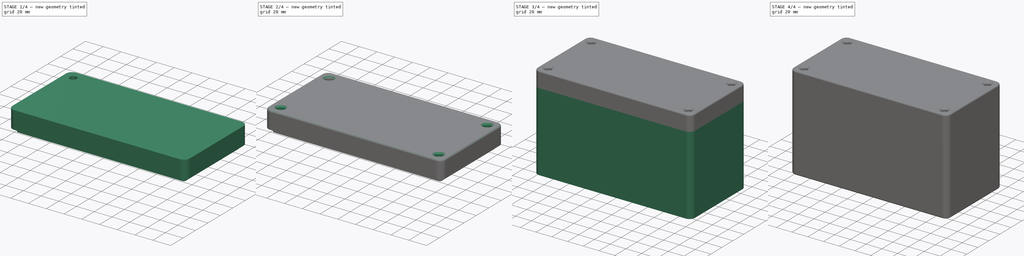
[diagram: build sequence overview — one tinted view per stage of 4, left to right]
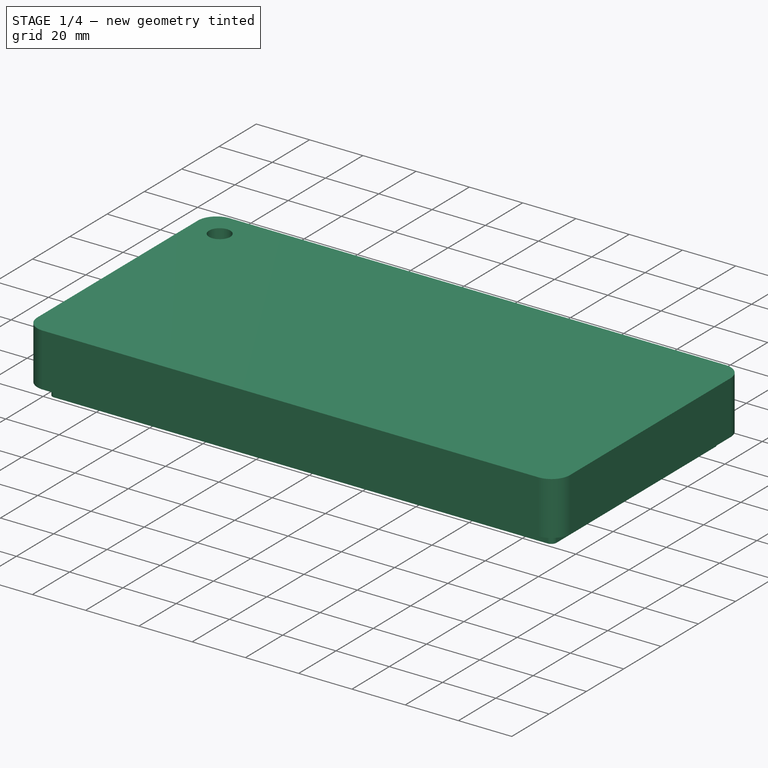
[diagram: stage 1 of 4 — iso view after this stage's code; geometry added in this stage tinted green]
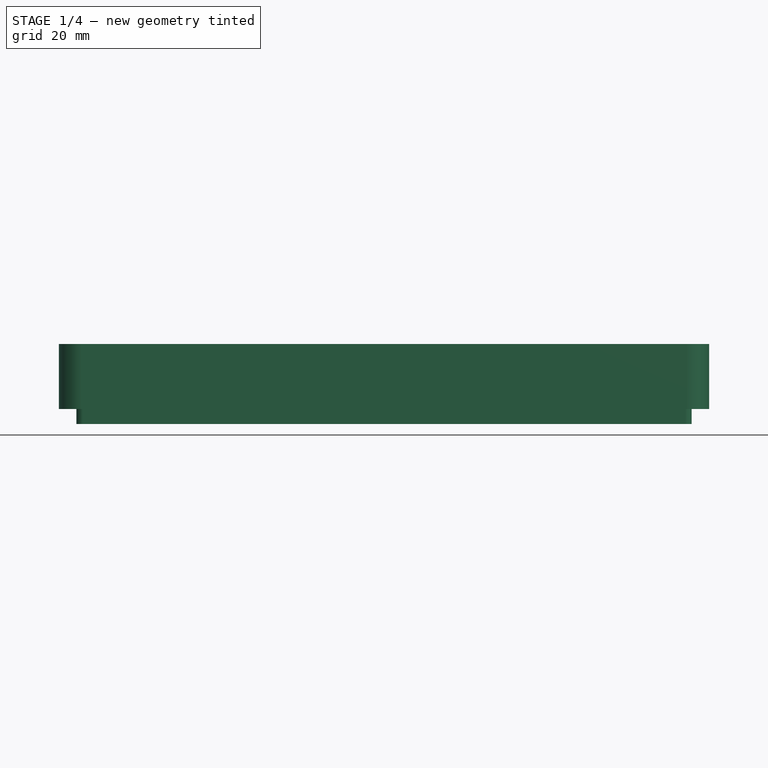
[diagram: stage 1 of 4 — front view after this stage's code; geometry added in this stage tinted green]
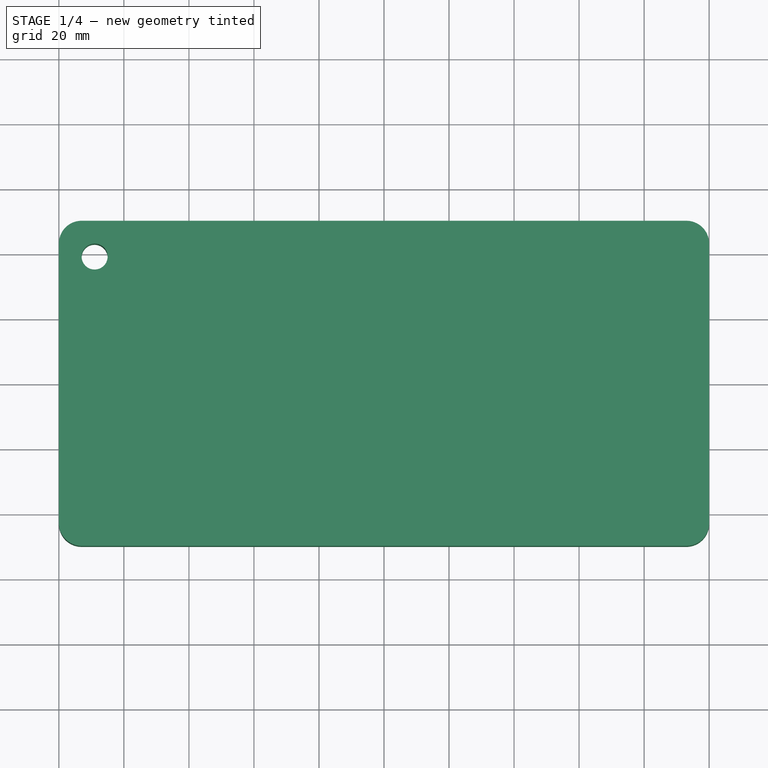
[diagram: stage 1 of 4 — top view after this stage's code; geometry added in this stage tinted green]
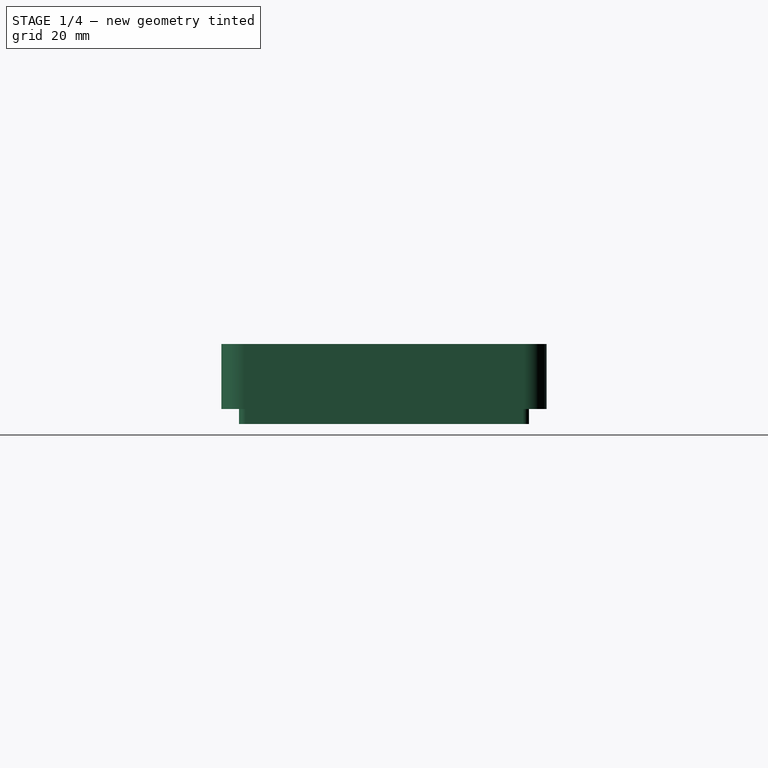
[diagram: stage 1 of 4 — right view after this stage's code; geometry added in this stage tinted green]
FCSTD DOCUMENT  (FreeCAD 0.20R29410 (Git))
Label: HOBOEnclosure
License: All rights reserved
LicenseURL: http://en.wikipedia.org/wiki/All_rights_reserved
objects: Sketcher::SketchObject×7, PartDesign::Pad×4, PartDesign::Mirrored×4, PartDesign::Pocket×3, PartDesign::Fillet×3, PartDesign::MultiTransform×2, PartDesign::Body×2, Spreadsheet::Sheet×1, PartDesign::Chamfer×1, App::TextDocument×1
note: 37 computed .brp shape members not serialized (recipe doc carries the construction recipe); baked Part::Feature solids carry a one-line shape summary decoded from their .brp

FEATURE [Sketcher::SketchObject] Sketch003
  AttachmentOffset = pos=(0,0,95) rot=(0,0,1;0rad)
  FullyConstrained = true
  MapMode = 5
  Placement = pos=(0,0,95) rot=(0,0,1;0rad)
  Support = -> [XY_Plane001]
  expr: .AttachmentOffset.Base.z = Spreadsheet.box_height - Spreadsheet.box_wall_thickness
  expr: Constraints[17] = Spreadsheet.outside_radius
  expr: Constraints[18] = Spreadsheet.box_width
  expr: Constraints[19] = Spreadsheet.box_length
  sketch-geometry (9):
    g0: LineSegment StartX=100 StartY=-43 StartZ=0 EndX=100 EndY=43 EndZ=0
    g1: LineSegment StartX=93 StartY=50 StartZ=0 EndX=-93 EndY=50 EndZ=0
    g2: LineSegment StartX=-100 StartY=43 StartZ=0 EndX=-100 EndY=-43 EndZ=0
    g3: LineSegment StartX=-93 StartY=-50 StartZ=0 EndX=93 EndY=-50 EndZ=0
    g4: GeomPoint X=0 Y=0 Z=0
    g5: ArcOfCircle CenterX=-93 CenterY=43 CenterZ=0 NormalX=0 NormalY=0 NormalZ=1 AngleXU=0 Radius=7 StartAngle=1.5708 EndAngle=3.14159
    g6: ArcOfCircle CenterX=-93 CenterY=-43 CenterZ=0 NormalX=0 NormalY=0 NormalZ=1 AngleXU=0 Radius=7 StartAngle=3.14159 EndAngle=4.71239
    g7: ArcOfCircle CenterX=93 CenterY=-43 CenterZ=0 NormalX=0 NormalY=0 NormalZ=1 AngleXU=0 Radius=7 StartAngle=4.71239 EndAngle=6.28319
    g8: ArcOfCircle CenterX=93 CenterY=43 CenterZ=0 NormalX=0 NormalY=0 NormalZ=1 AngleXU=0 Radius=7 StartAngle=1e-16 EndAngle=1.5708
  constraints (20):
    c: Horizontal(g1)
    c: Horizontal(g3)
    c: Vertical(g0)
    c: Vertical(g2)
    c: Coincident(g4,g-1)
    c: Tangent(g1,g5) = -1.5708
    c: Tangent(g2,g5) = -1.5708
    c: Tangent(g3,g6) = -1.5708
    c: Tangent(g2,g6) = -1.5708
    c: Tangent(g0,g7) = -1.5708
    c: Tangent(g3,g7) = -1.5708
    c: Tangent(g1,g8) = -1.5708
    c: Tangent(g0,g8) = -1.5708
    c: Symmetric(g5,g7,g4)
    c: Equal(g5,g8)
    c: Equal(g8,g7)
    c: Equal(g7,g6)
    c: Radius(g5) = 7
    c: DistanceY(g3,g1) = 100
    c: DistanceX(g2,g0) = 200
FEATURE [PartDesign::Pad] Pad002
  Direction = (0,0,1)
  Length = 20
  Length2 = 10
  Profile = -> Sketch003
  ReferenceAxis = -> Sketch003 [N_Axis]
  Type = 0
  expr: Length = Spreadsheet.lid_height
FEATURE [Sketcher::SketchObject] Sketch004
  AttachmentOffset = pos=(0,0,95) rot=(0,0,1;0rad)
  FullyConstrained = true
  MapMode = 5
  Placement = pos=(0,0,95) rot=(0,0,1;0rad)
  Support = -> [XY_Plane001]
  expr: .AttachmentOffset.Base.z = Spreadsheet.box_height - Spreadsheet.box_wall_thickness
  expr: Constraints[17] = Spreadsheet.inside_radius
  expr: Constraints[18] = Spreadsheet.box_inside_width - Spreadsheet.clearance_sides * 2
  expr: Constraints[19] = Spreadsheet.box_inside_length - Spreadsheet.clearance_sides * 2
  sketch-geometry (9):
    g0: LineSegment StartX=94.6 StartY=-42.6 StartZ=0 EndX=94.6 EndY=42.6 EndZ=0
    g1: LineSegment StartX=92.6 StartY=44.6 StartZ=0 EndX=-92.6 EndY=44.6 EndZ=0
    g2: LineSegment StartX=-94.6 StartY=42.6 StartZ=0 EndX=-94.6 EndY=-42.6 EndZ=0
    g3: LineSegment StartX=-92.6 StartY=-44.6 StartZ=0 EndX=92.6 EndY=-44.6 EndZ=0
    g4: GeomPoint X=0 Y=0 Z=0
    g5: ArcOfCircle CenterX=-92.6 CenterY=42.6 CenterZ=0 NormalX=0 NormalY=0 NormalZ=1 AngleXU=0 Radius=2 StartAngle=1.5708 EndAngle=3.14159
    g6: ArcOfCircle CenterX=-92.6 CenterY=-42.6 CenterZ=0 NormalX=0 NormalY=0 NormalZ=1 AngleXU=0 Radius=2 StartAngle=3.14159 EndAngle=4.71239
    g7: ArcOfCircle CenterX=92.6 CenterY=-42.6 CenterZ=0 NormalX=0 NormalY=0 NormalZ=1 AngleXU=0 Radius=2 StartAngle=4.71239 EndAngle=6.28319
    g8: ArcOfCircle CenterX=92.6 CenterY=42.6 CenterZ=0 NormalX=0 NormalY=0 NormalZ=1 AngleXU=0 Radius=2 StartAngle=9.29236e-11 EndAngle=1.5708
  constraints (20):
    c: Horizontal(g1)
    c: Horizontal(g3)
    c: Vertical(g0)
    c: Vertical(g2)
    c: Coincident(g4,g-1)
    c: Tangent(g1,g5) = -1.5708
    c: Tangent(g2,g5) = -1.5708
    c: Tangent(g2,g6) = -1.5708
    c: Tangent(g3,g6) = -1.5708
    c: Tangent(g3,g7) = -1.5708
    c: Tangent(g0,g7) = -1.5708
    c: Tangent(g0,g8) = -1.5708
    c: Tangent(g1,g8) = -1.5708
    c: Symmetric(g7,g5,g4)
    c: Equal(g6,g5)
    c: Equal(g5,g8)
    c: Equal(g8,g7)
    c: Radius(g5) = 2
    c: DistanceY(g3,g1) = 89.2
    c: DistanceX(g2,g0) = 189.2
FEATURE [PartDesign::Pad] Pad003
  BaseFeature = -> Pad002
  Direction = (0,0,1)
  Length = 4.6
  Length2 = 10
  Profile = -> Sketch004
  ReferenceAxis = -> Sketch004 [N_Axis]
  Reversed = true
  Type = 0
  expr: Length = Spreadsheet.box_wall_thickness - Spreadsheet.clearance_sides
FEATURE [Sketcher::SketchObject] Sketch005
  FullyConstrained = true
  MapMode = 5
  Support = -> [XY_Plane001]
  expr: Constraints[0] = Spreadsheet.clearance_hole
  expr: Constraints[1] = Spreadsheet.hole_center_length
  expr: Constraints[2] = Spreadsheet.hole_center_width
  sketch-geometry (1):
    g0: Circle CenterX=-89 CenterY=39 CenterZ=0 NormalX=0 NormalY=0 NormalZ=1 AngleXU=0 Radius=4
  constraints (3):
    c: Diameter(g0) = 8
    c: DistanceX(g0,g-1) = 89
    c: DistanceY(g-1,g0) = 39
FEATURE [PartDesign::Pocket] Pocket001
  BaseFeature = -> Pad003
  Direction = (0,0,-1)
  Length = 5
  Length2 = 5
  Profile = -> Sketch005
  ReferenceAxis = -> Sketch005 [N_Axis]
  Reversed = true
  Type = 1
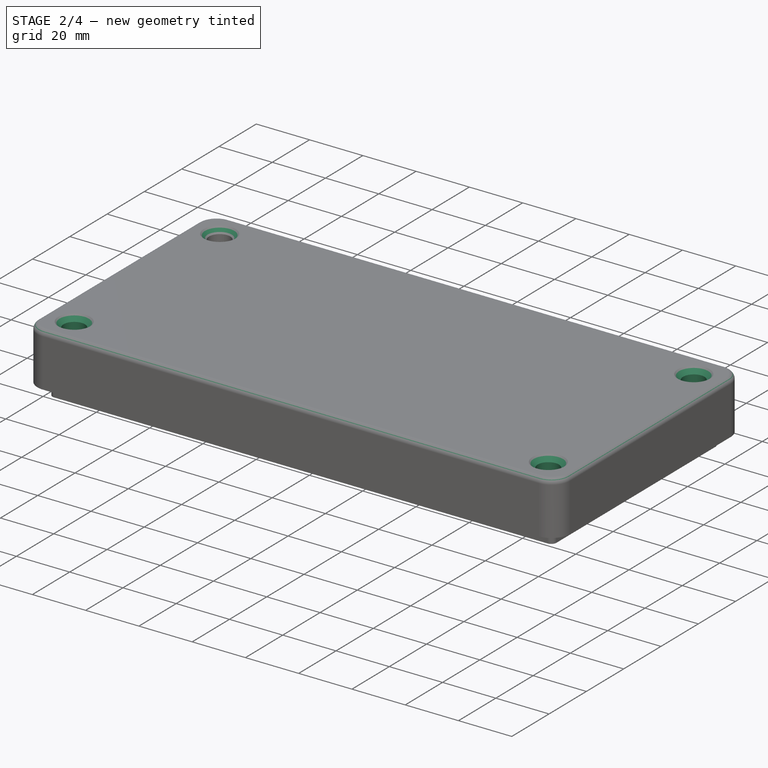
[diagram: stage 2 of 4 — iso view after this stage's code; geometry added in this stage tinted green]
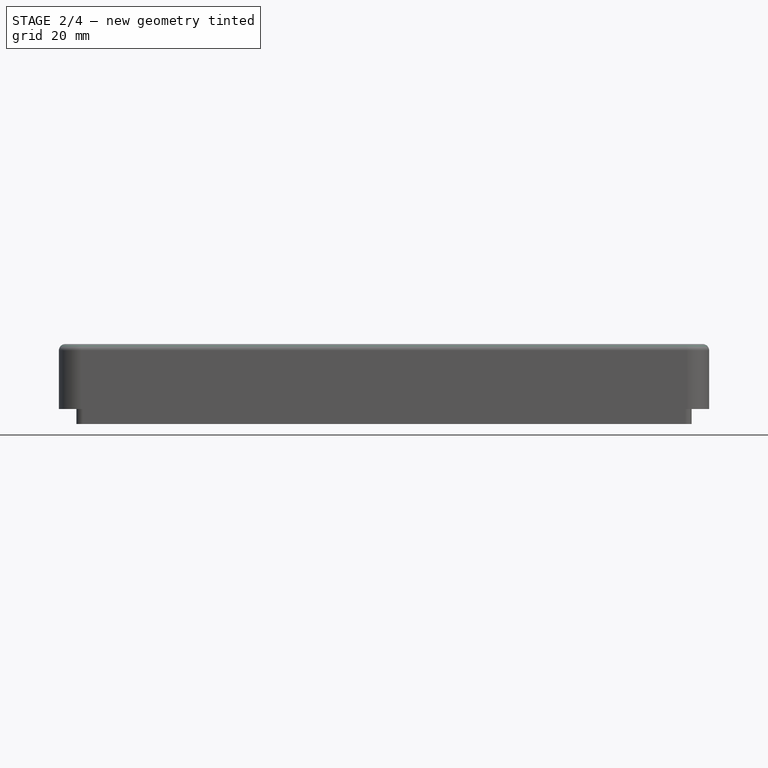
[diagram: stage 2 of 4 — front view after this stage's code; geometry added in this stage tinted green]
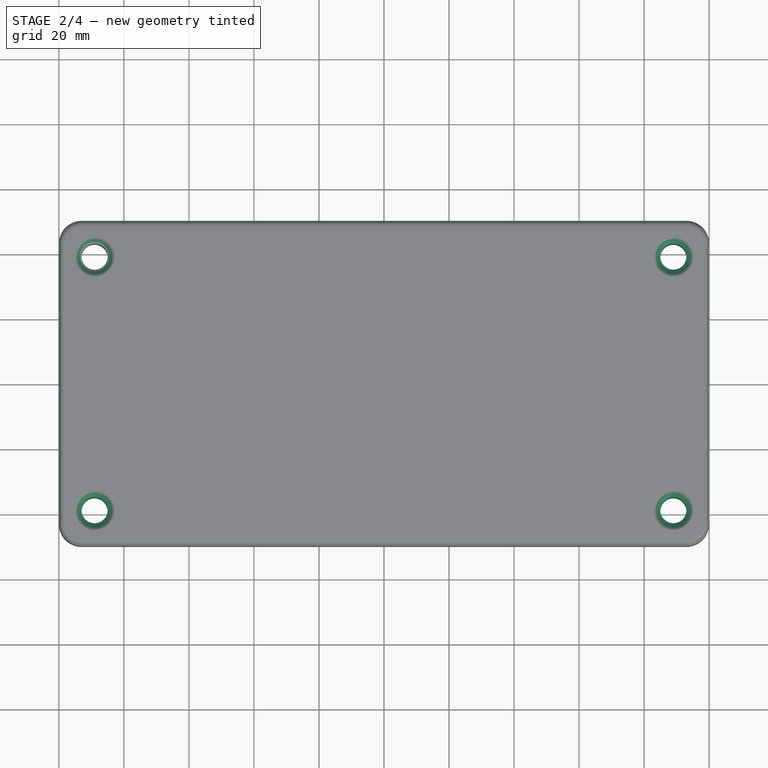
[diagram: stage 2 of 4 — top view after this stage's code; geometry added in this stage tinted green]
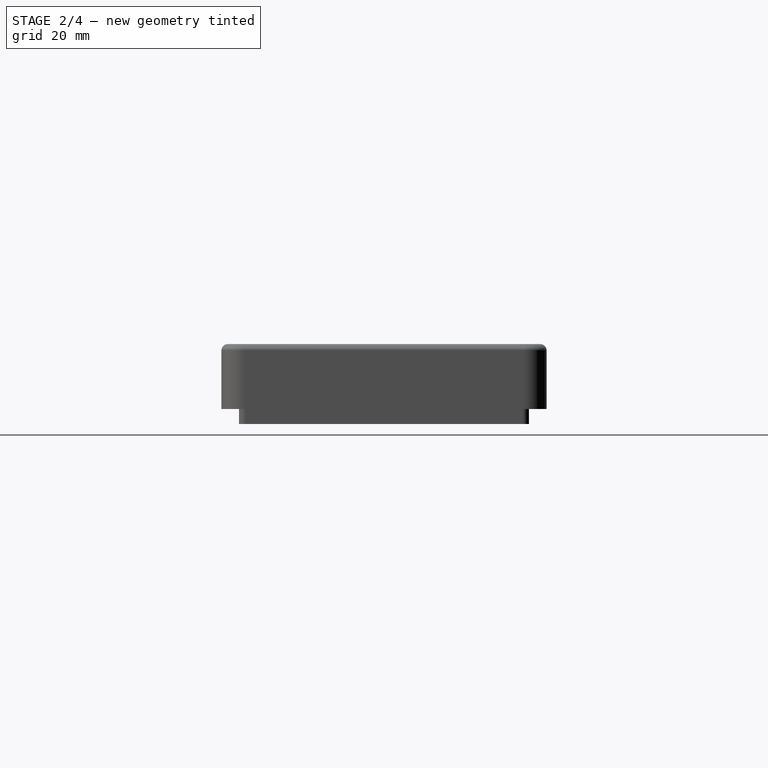
[diagram: stage 2 of 4 — right view after this stage's code; geometry added in this stage tinted green]
FEATURE [PartDesign::Mirrored] Mirrored002
  MirrorPlane = -> XZ_Plane001
FEATURE [PartDesign::Mirrored] Mirrored003
  MirrorPlane = -> YZ_Plane001
FEATURE [PartDesign::MultiTransform] MultiTransform001
  BaseFeature = -> Pocket001
  Originals = -> [Pocket001]
  Transformations = -> [Mirrored002,Mirrored003]
FEATURE [PartDesign::Chamfer] Chamfer
  Angle = 45
  Base = -> MultiTransform001 [Edge32,Edge31,Edge29,Edge30]
  BaseFeature = -> MultiTransform001
  ChamferType = 0
  FlipDirection = false
  Size = 2
  Size2 = 1
  SupportTransform = false
  UseAllEdges = false
FEATURE [PartDesign::Body] Body
  Group = -> [Sketch,Pad,Sketch001,Pocket,Sketch002,Pad001,MultiTransform,Mirrored,Mirrored001,Fillet]
  Origin = -> Origin
  Tip = -> Fillet
FEATURE [PartDesign::Fillet] Fillet001
  Base = -> Chamfer [Edge5]
  BaseFeature = -> Chamfer
  Radius = 2
  SupportTransform = false
  UseAllEdges = false
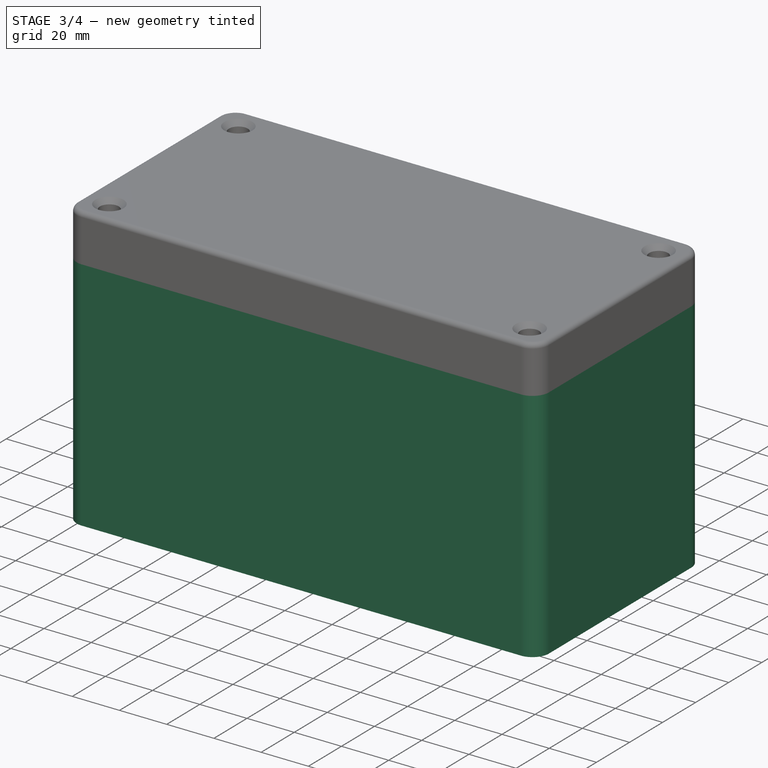
[diagram: stage 3 of 4 — iso view after this stage's code; geometry added in this stage tinted green]
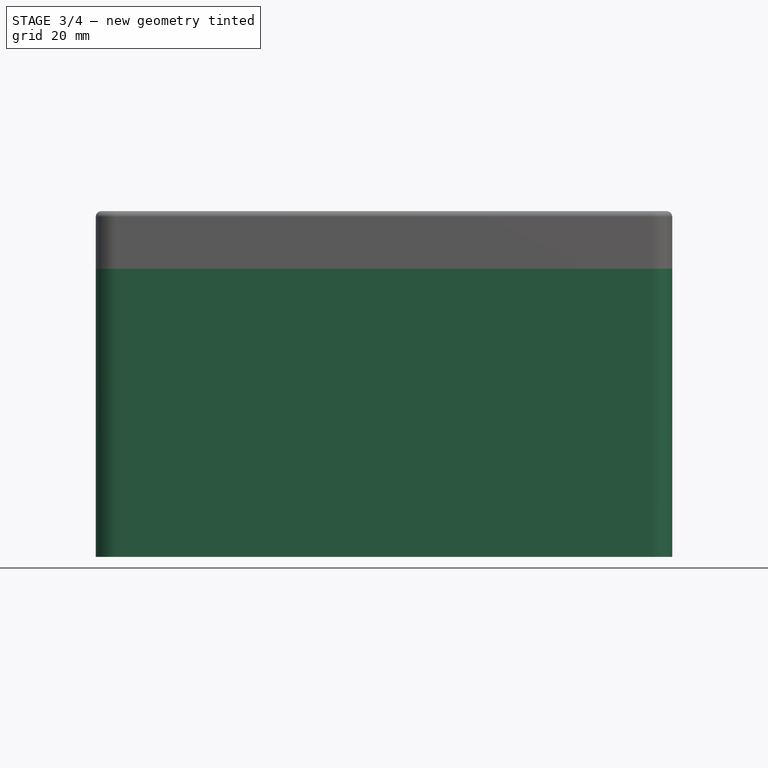
[diagram: stage 3 of 4 — front view after this stage's code; geometry added in this stage tinted green]
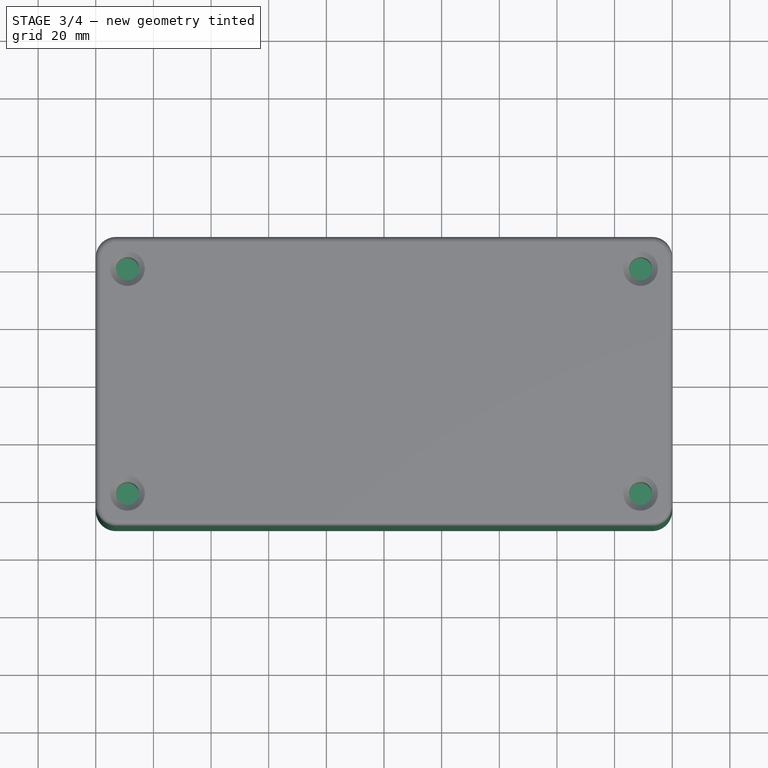
[diagram: stage 3 of 4 — top view after this stage's code; geometry added in this stage tinted green]
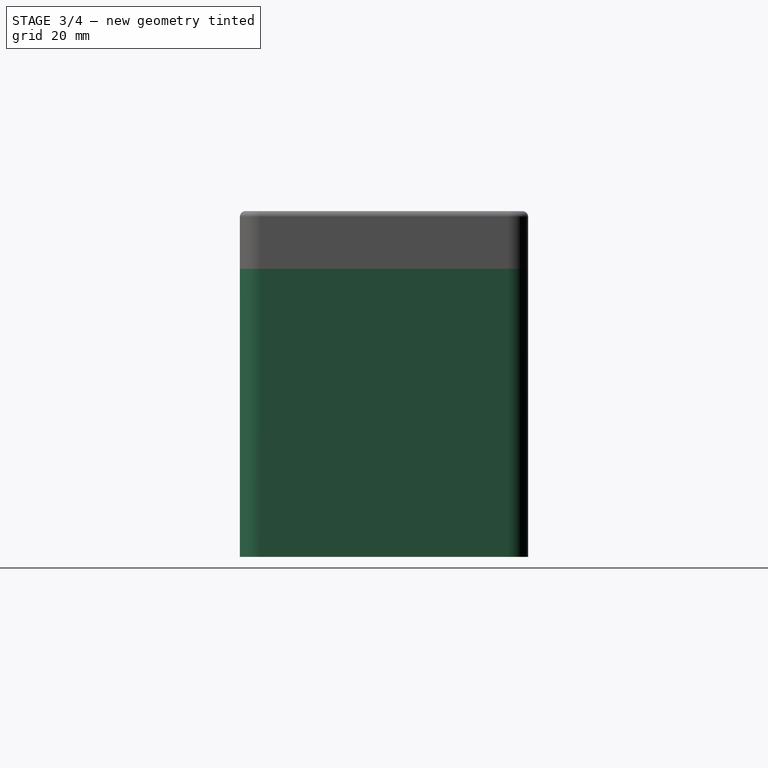
[diagram: stage 3 of 4 — right view after this stage's code; geometry added in this stage tinted green]
FEATURE [Sketcher::SketchObject] Sketch
  AttachmentOffset = pos=(0,0,-5) rot=(0,0,1;0rad)
  FullyConstrained = true
  MapMode = 5
  Placement = pos=(0,0,-5) rot=(0,0,1;0rad)
  Support = -> [XY_Plane]
  expr: .AttachmentOffset.Base.z = -Spreadsheet.box_wall_thickness
  expr: Constraints[17] = Spreadsheet.outside_radius
  expr: Constraints[18] = Spreadsheet.box_length
  expr: Constraints[19] = Spreadsheet.box_width
  sketch-geometry (9):
    g0: LineSegment StartX=100 StartY=-43 StartZ=0 EndX=100 EndY=43 EndZ=0
    g1: LineSegment StartX=93 StartY=50 StartZ=0 EndX=-93 EndY=50 EndZ=0
    g2: LineSegment StartX=-100 StartY=43 StartZ=0 EndX=-100 EndY=-43 EndZ=0
    g3: LineSegment StartX=-93 StartY=-50 StartZ=0 EndX=93 EndY=-50 EndZ=0
    g4: GeomPoint X=0 Y=0 Z=0
    g5: ArcOfCircle CenterX=-93 CenterY=43 CenterZ=0 NormalX=0 NormalY=0 NormalZ=1 AngleXU=0 Radius=7 StartAngle=1.5708 EndAngle=3.14159
    g6: ArcOfCircle CenterX=-93 CenterY=-43 CenterZ=0 NormalX=0 NormalY=0 NormalZ=1 AngleXU=0 Radius=7 StartAngle=3.14159 EndAngle=4.71239
    g7: ArcOfCircle CenterX=93 CenterY=-43 CenterZ=0 NormalX=0 NormalY=0 NormalZ=1 AngleXU=0 Radius=7 StartAngle=4.71239 EndAngle=6.28319
    g8: ArcOfCircle CenterX=93 CenterY=43 CenterZ=0 NormalX=0 NormalY=0 NormalZ=1 AngleXU=0 Radius=7 StartAngle=-9e-16 EndAngle=1.5708
  constraints (20):
    c: Horizontal(g1)
    c: Horizontal(g3)
    c: Vertical(g0)
    c: Vertical(g2)
    c: Coincident(g4,g-1)
    c: Tangent(g1,g5) = -1.5708
    c: Tangent(g2,g5) = -1.5708
    c: Tangent(g2,g6) = -1.5708
    c: Tangent(g3,g6) = -1.5708
    c: Tangent(g3,g7) = -1.5708
    c: Tangent(g0,g7) = -1.5708
    c: Tangent(g0,g8) = -1.5708
    c: Tangent(g1,g8) = -1.5708
    c: Symmetric(g5,g7,g4)
    c: Equal(g5,g8)
    c: Equal(g8,g7)
    c: Equal(g7,g6)
    c: Radius(g5) = 7
    c: DistanceX(g2,g0) = 200
    c: DistanceY(g3,g1) = 100
FEATURE [PartDesign::Pad] Pad
  Direction = (0,0,1)
  Length = 100
  Length2 = 10
  Profile = -> Sketch
  ReferenceAxis = -> Sketch [N_Axis]
  Type = 0
  expr: Length = Spreadsheet.box_height
FEATURE [Spreadsheet::Sheet] Spreadsheet
  cells = A2=box_length; B2(box_length)=200; A3=box_width; B3(box_width)=100; A4=box_height; B4(box_height)=100; A5=outside_radius; B5(outside_radius)==B7 + 2; C5=Calculated; A6=inside_radius; B6(inside_radius)==B5 - B7; C6=Calculated; A7=box_wall_thickness; B7(box_wall_thickness)=5; A8=hole_dia; B8(hole_dia)=6; A9=lug_height; B9(lug_height)==B4 - B7 * 2; C9=Calculated; A10=lug_radius; B10(lug_radius)==B8 * 2.5; C10=Calculated; A11=hole_center_length; B11(hole_center_length)==B13 / 2 - B8; C11=Calculated; A12=hole_center_width; B12(hole_center_width)==B14 / 2 - B8; C12=Calculated; A13=box_inside_length; B13(box_inside_length)==B2 - B7 * 2; C13=Calculated; A14=box_inside_width; B14(box_inside_width)==B3 - B7 * 2; C14=Calculated; A15=lid_thickness; B15(lid_thickness)==B7; C15=Calculated; A16=lid_champher; B16(lid_champher)==B7; C16=Calculated; A17=clearance_sides; B17(clearance_sides)=0.4; A18=clearance_hole; B18(clearance_hole)==B8 + 2; C18=Calculated; A19=lid_height; B19(lid_height)==B4 / 5; C19=Calculated
FEATURE [Sketcher::SketchObject] Sketch001
  FullyConstrained = true
  MapMode = 5
  Support = -> [XY_Plane]
  expr: Constraints[17] = Spreadsheet.inside_radius
  expr: Constraints[18] = Spreadsheet.box_inside_length
  expr: Constraints[19] = Spreadsheet.box_inside_width
  sketch-geometry (9):
    g0: LineSegment StartX=95 StartY=-43 StartZ=0 EndX=95 EndY=43 EndZ=0
    g1: LineSegment StartX=93 StartY=45 StartZ=0 EndX=-93 EndY=45 EndZ=0
    g2: LineSegment StartX=-95 StartY=43 StartZ=0 EndX=-95 EndY=-43 EndZ=0
    g3: LineSegment StartX=-93 StartY=-45 StartZ=0 EndX=93 EndY=-45 EndZ=0
    g4: GeomPoint X=0 Y=0 Z=0
    g5: ArcOfCircle CenterX=-93 CenterY=43 CenterZ=0 NormalX=0 NormalY=0 NormalZ=1 AngleXU=0 Radius=2 StartAngle=1.5708 EndAngle=3.14159
    g6: ArcOfCircle CenterX=-93 CenterY=-43 CenterZ=0 NormalX=0 NormalY=0 NormalZ=1 AngleXU=0 Radius=2 StartAngle=3.14159 EndAngle=4.71239
    g7: ArcOfCircle CenterX=93 CenterY=-43 CenterZ=0 NormalX=0 NormalY=0 NormalZ=1 AngleXU=0 Radius=2 StartAngle=4.71239 EndAngle=6.28319
    g8: ArcOfCircle CenterX=93 CenterY=43 CenterZ=0 NormalX=0 NormalY=0 NormalZ=1 AngleXU=0 Radius=2 StartAngle=9.29225e-11 EndAngle=1.5708
  constraints (20):
    c: Horizontal(g1)
    c: Horizontal(g3)
    c: Vertical(g0)
    c: Vertical(g2)
    c: Coincident(g4,g-1)
    c: Tangent(g1,g5) = -1.5708
    c: Tangent(g2,g5) = -1.5708
    c: Tangent(g2,g6) = -1.5708
    c: Tangent(g3,g6) = -1.5708
    c: Tangent(g3,g7) = -1.5708
    c: Tangent(g0,g7) = -1.5708
    c: Tangent(g0,g8) = -1.5708
    c: Tangent(g1,g8) = -1.5708
    c: Symmetric(g5,g7,g4)
    c: Equal(g5,g6)
    c: Equal(g6,g7)
    c: Equal(g7,g8)
    c: Radius(g8) = 2
    c: DistanceX(g2,g0) = 190
    c: DistanceY(g3,g1) = 90
FEATURE [PartDesign::Pocket] Pocket
  BaseFeature = -> Pad
  Direction = (0,0,-1)
  Length = 5
  Length2 = 5
  Profile = -> Sketch001
  ReferenceAxis = -> Sketch001 [N_Axis]
  Reversed = true
  Type = 1
FEATURE [App::TextDocument] Text_document  label="Text document"
  Text = SANSA LOGGING FLUXGATE MAGNETOMETER
FEATURE [Sketcher::SketchObject] Sketch006
  FullyConstrained = false
  MapMode = 5
  Placement = pos=(0,0,90.4) rot=(1,0,0;3.14159rad)
  Support = -> [Fillet001]
  sketch-geometry (14):
    g0: LineSegment StartX=90 StartY=-30 StartZ=0 EndX=90 EndY=30 EndZ=0
    g1: LineSegment StartX=90 StartY=30 StartZ=0 EndX=80 EndY=30 EndZ=0
    g2: LineSegment StartX=-90 StartY=30 StartZ=0 EndX=-90 EndY=-30 EndZ=0
    g3: LineSegment StartX=-90 StartY=-30 StartZ=0 EndX=-80 EndY=-30 EndZ=0
    g4: GeomPoint X=0 Y=0 Z=0
    g5: LineSegment StartX=80 StartY=-40 StartZ=0 EndX=80 EndY=-30 EndZ=0
    g6: LineSegment StartX=80 StartY=40 StartZ=0 EndX=-80 EndY=40 EndZ=0
    g7: LineSegment StartX=-80 StartY=40 StartZ=0 EndX=-80 EndY=30 EndZ=0
    g8: LineSegment StartX=-80 StartY=-40 StartZ=0 EndX=80 EndY=-40 EndZ=0
    g9: GeomPoint X=0 Y=0 Z=0
    g10: LineSegment StartX=-80 StartY=-30 StartZ=0 EndX=-80 EndY=-40 EndZ=0
    g11: LineSegment StartX=-80 StartY=30 StartZ=0 EndX=-90 EndY=30 EndZ=0
    g12: LineSegment StartX=80 StartY=-30 StartZ=0 EndX=90 EndY=-30 EndZ=0
    g13: LineSegment StartX=80 StartY=30 StartZ=0 EndX=80 EndY=40 EndZ=0
  constraints (25):
    c: Coincident(g0,g1)
    c: Coincident(g11,g2)
    c: Coincident(g2,g3)
    c: Coincident(g12,g0)
    c: Horizontal(g1)
    c: Horizontal(g3)
    c: Vertical(g0)
    c: Vertical(g2)
    c: Symmetric(g11,g0,g4)
    c: Coincident(g4,g-1)
    c: DistanceX(g11,g0) = 180
    c: Coincident(g13,g6)
    c: Coincident(g6,g7)
    c: Coincident(g10,g8)
    c: Coincident(g8,g5)
    c: Horizontal(g6)
    c: Horizontal(g8)
    c: Vertical(g5)
    c: Vertical(g7)
    c: Symmetric(g6,g5,g9)
    c: Coincident(g9,g4)
    c: Coincident(g11,g7)
    c: Coincident(g3,g10)
    c: Coincident(g5,g12)
    c: Coincident(g13,g1)
FEATURE [PartDesign::Pocket] Pocket002
  BaseFeature = -> Fillet001
  Direction = (0,0,1)
  Length = 20
  Length2 = 5
  Profile = -> Sketch006
  ReferenceAxis = -> Sketch006 [N_Axis]
  Type = 0
  expr: Length = Spreadsheet.lid_height
FEATURE [PartDesign::Fillet] Fillet002
  Base = -> Pocket002 [Edge110,Edge116,Edge104,Edge97]
  BaseFeature = -> Pocket002
  Radius = 5
  SupportTransform = false
  UseAllEdges = false
FEATURE [PartDesign::Body] Body001
  Group = -> [Sketch003,Pad002,Sketch004,Pad003,Sketch005,Pocket001,MultiTransform001,Mirrored002,Mirrored003,Chamfer,Fillet001,Sketch006,Pocket002,Fillet002]
  Origin = -> Origin001
  Tip = -> Fillet002
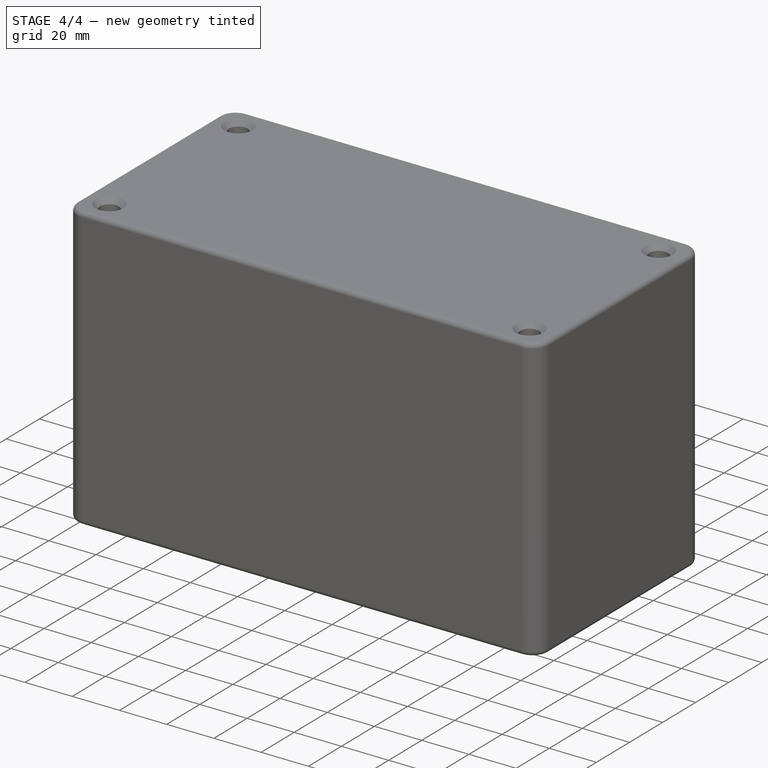
[diagram: stage 4 of 4 — iso view after this stage's code; geometry added in this stage tinted green]
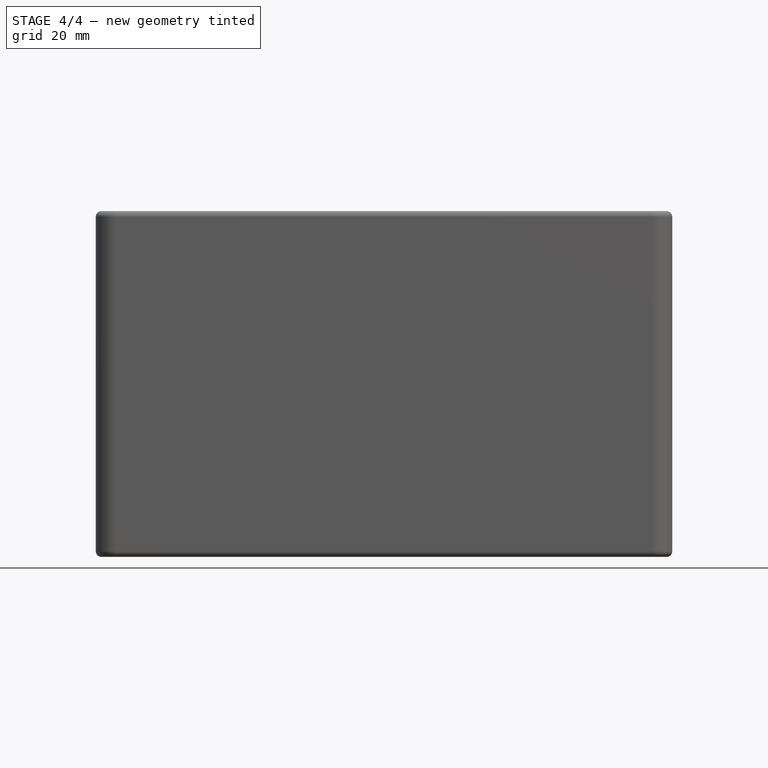
[diagram: stage 4 of 4 — front view after this stage's code; geometry added in this stage tinted green]
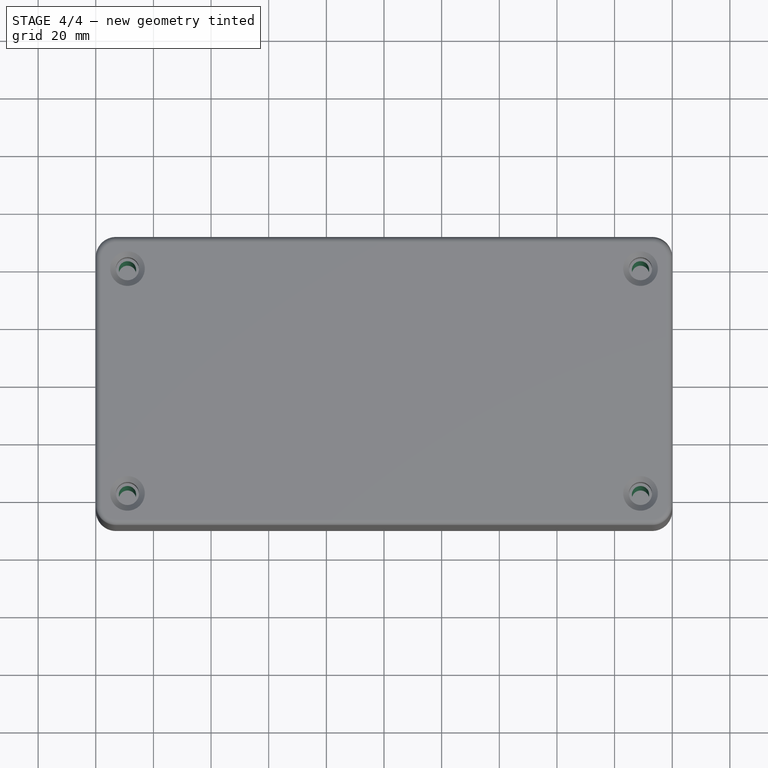
[diagram: stage 4 of 4 — top view after this stage's code; geometry added in this stage tinted green]
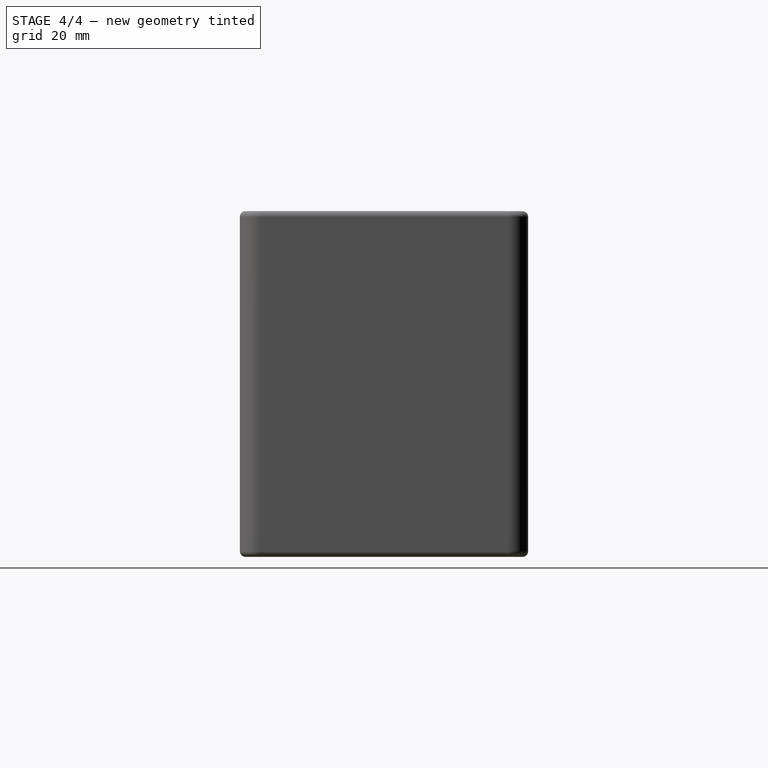
[diagram: stage 4 of 4 — right view after this stage's code; geometry added in this stage tinted green]
FEATURE [Sketcher::SketchObject] Sketch002
  FullyConstrained = true
  MapMode = 5
  Support = -> [XY_Plane]
  expr: Constraints[10] = Spreadsheet.hole_center_length
  expr: Constraints[11] = Spreadsheet.hole_center_width
  expr: Constraints[6] = Spreadsheet.hole_dia
  expr: Constraints[7] = Spreadsheet.lug_radius
  expr: Constraints[8] = Spreadsheet.hole_dia
  expr: Constraints[9] = Spreadsheet.hole_dia
  sketch-geometry (4):
    g0: LineSegment StartX=-95 StartY=45 StartZ=0 EndX=-80 EndY=45 EndZ=0
    g1: LineSegment StartX=-95 StartY=45 StartZ=0 EndX=-95 EndY=30 EndZ=0
    g2: ArcOfCircle CenterX=-95 CenterY=45 CenterZ=0 NormalX=0 NormalY=0 NormalZ=1 AngleXU=0 Radius=15 StartAngle=4.71239 EndAngle=6.28319
    g3: Circle CenterX=-89 CenterY=39 CenterZ=0 NormalX=0 NormalY=0 NormalZ=1 AngleXU=0 Radius=3
  constraints (12):
    c: Horizontal(g0)
    c: Coincident(g1,g0)
    c: Vertical(g1)
    c: Coincident(g2,g0)
    c: Coincident(g2,g0)
    c: Coincident(g2,g1)
    c: Diameter(g3) = 6
    c: Radius(g2) = 15
    c: DistanceY(g3,g0) = 6
    c: DistanceX(g0,g3) = 6
    c: DistanceX(g3,g-1) = 89
    c: DistanceY(g-1,g3) = 39
FEATURE [PartDesign::Pad] Pad001
  BaseFeature = -> Pocket
  Direction = (0,0,1)
  Length = 90
  Length2 = 10
  Profile = -> Sketch002
  ReferenceAxis = -> Sketch002 [N_Axis]
  Type = 0
  expr: Length = Spreadsheet.lug_height
FEATURE [PartDesign::Mirrored] Mirrored
  MirrorPlane = -> Sketch002 [V_Axis]
FEATURE [PartDesign::Mirrored] Mirrored001
  MirrorPlane = -> Sketch002 [H_Axis]
FEATURE [PartDesign::MultiTransform] MultiTransform
  BaseFeature = -> Pad001
  Originals = -> [Pad001]
  Transformations = -> [Mirrored,Mirrored001]
FEATURE [PartDesign::Fillet] Fillet
  Base = -> MultiTransform [Edge15]
  BaseFeature = -> MultiTransform
  Radius = 2
  SupportTransform = false
  UseAllEdges = false
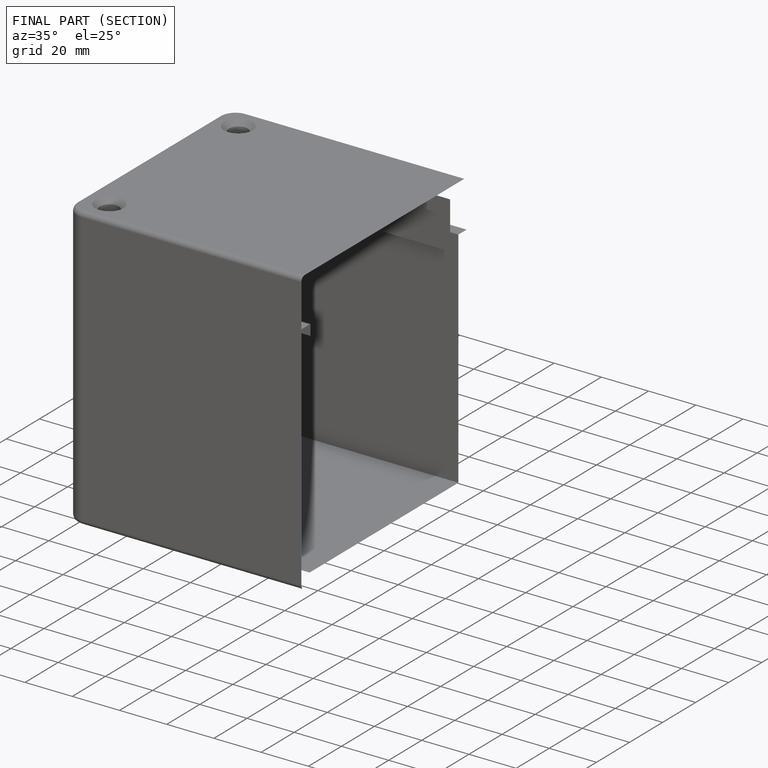
[diagram: finished part — half-section view (interior)]
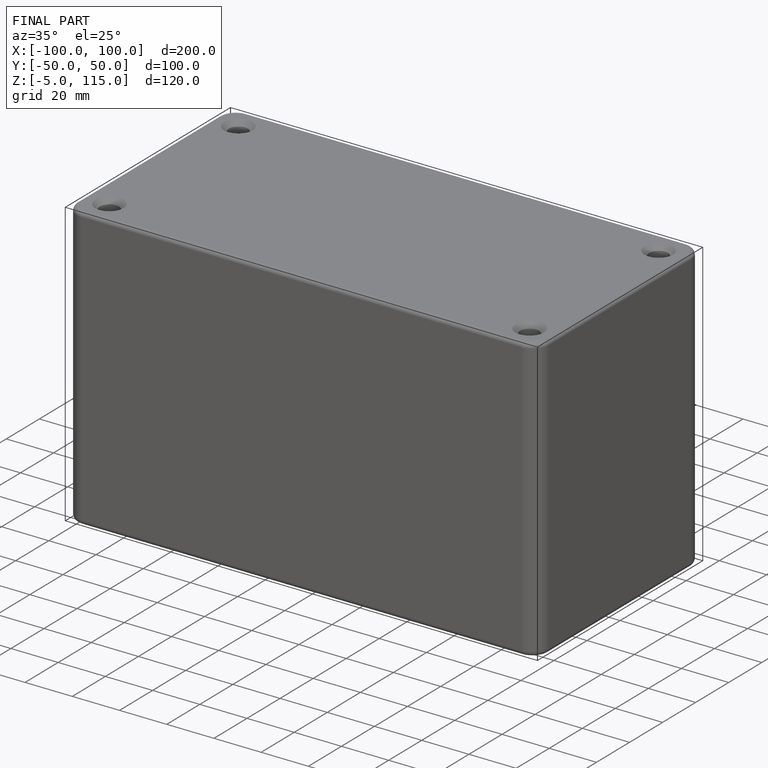
[diagram: finished part — iso view with bounding-box wireframe]
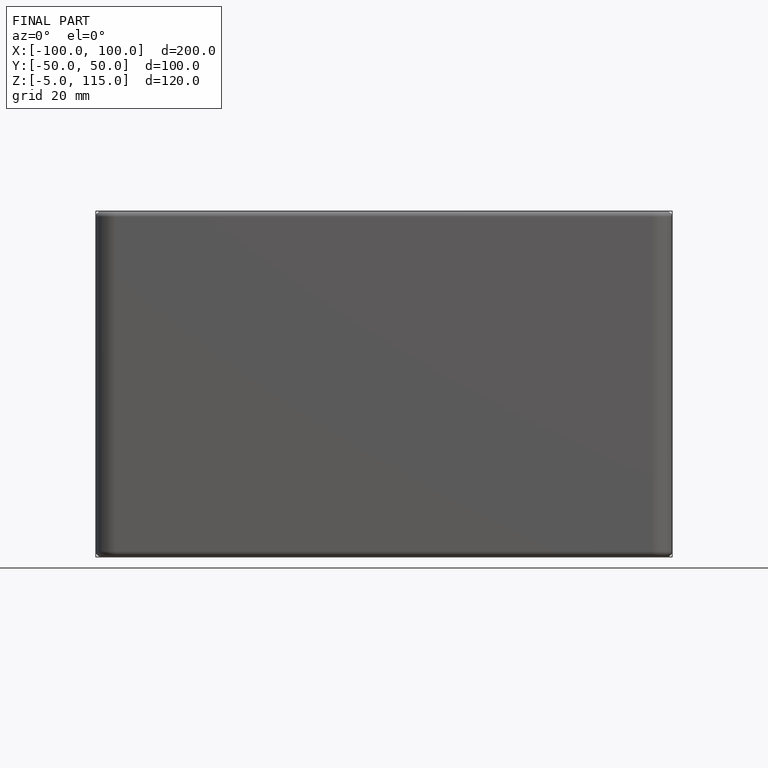
[diagram: finished part — front view with bounding-box wireframe]
